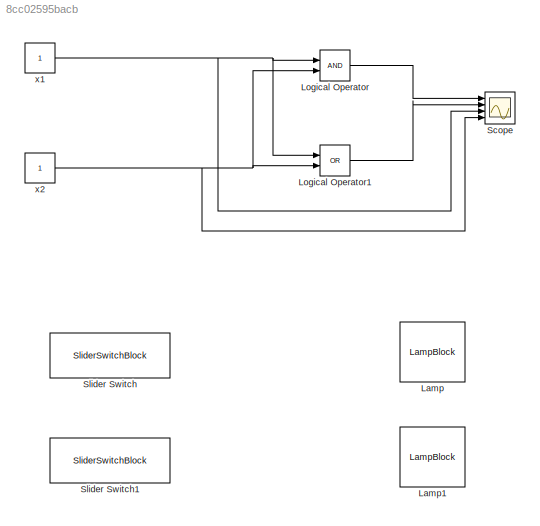
MODEL slx_8cc02595bacb
KIND model
CONFIG AbsTol = auto
CONFIG EnableMultiTasking = off
CONFIG FixedStep = auto
CONFIG MaxStep = auto
CONFIG MinStep = auto
CONFIG RelTol = 1e-3
CONFIG SampleTimeConstraint = Unconstrained
CONFIG Solver = VariableStepAuto
CONFIG SolverName = VariableStepAuto
CONFIG StartTime = 0.0
CONFIG StopTime = 30
BLOCK [LampBlock] Lamp
  WebBlockId = 9
BLOCK [LampBlock] Lamp1
  WebBlockId = 10
BLOCK [Logic] Logical Operator
  AllPortsSameDT = off
  OutDataTypeStr = boolean
  Ports = [2, 1]
BLOCK [Logic] Logical Operator1
  AllPortsSameDT = off
  Operator = OR
  OutDataTypeStr = boolean
  Ports = [2, 1]
BLOCK [Scope] Scope
  Floating = off
  NumInputPorts = 4
  Ports = [4]
  ScopeSpecificationString = Simulink.scopes.TimeScopeBlockCfg('CurrentConfiguration', extmgr.ConfigurationSet(extmgr.Configuration('Core','General UI',true),extmgr.Configuration('Core','Source UI',true),extmgr.Configuration('Sources','WiredSimulink',true),extmgr.Configuration('Visuals','Time Domain',true,'SerializedDisplays',{struct('MinYLimReal','-0.125','MaxYLimReal','1.125','YLabelReal','','MinYLimMag','0.00000','MaxYLimM...<+3351ch>
BLOCK [SliderSwitchBlock] Slider Switch
  WebBlockId = 12
BLOCK [SliderSwitchBlock] Slider Switch1
  WebBlockId = 13
BLOCK [Constant] x1
BLOCK [Constant] x2
LINE Logical Operator1:1 -> Scope:2
LINE Logical Operator:1 -> Scope:1
NET x1:1 -> Logical Operator1:1, Logical Operator:1, Scope:3
NET x2:1 -> Logical Operator1:2, Logical Operator:2, Scope:4
note: NET lines group one-source signal fan-out (src -> all destinations, sorted); 1:1 wires keep LINE
